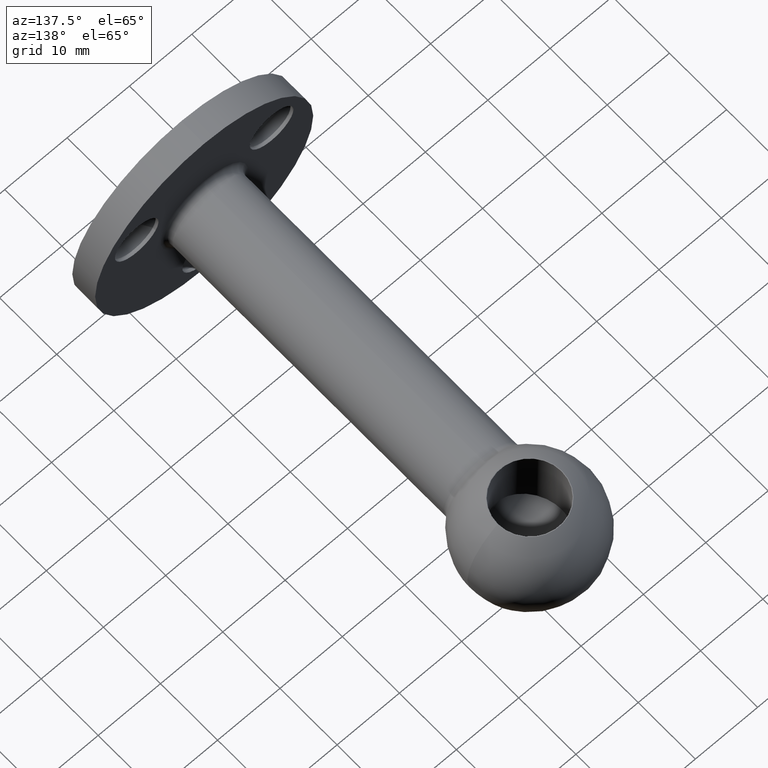
[diagram: clean part render]
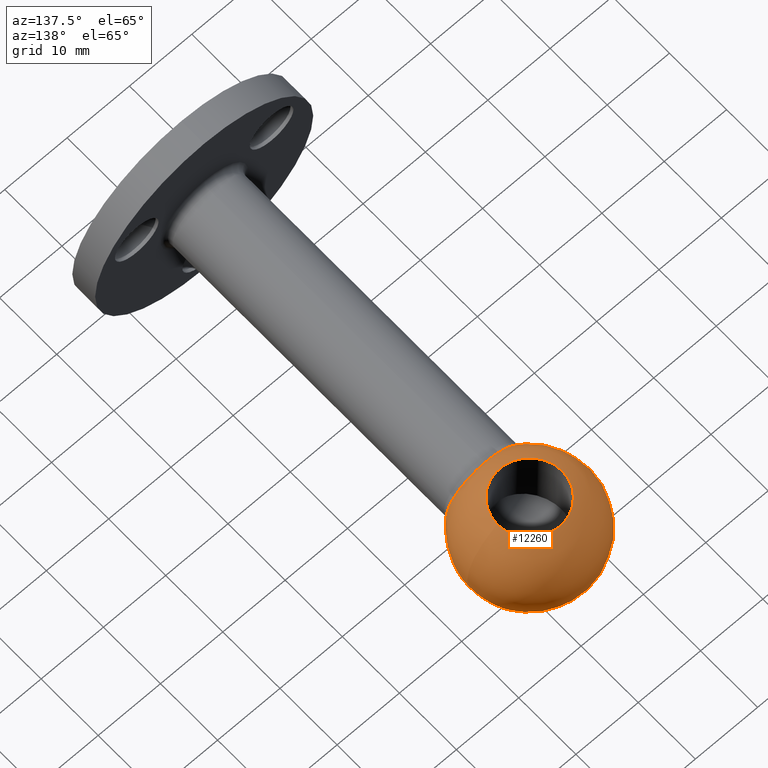
[diagram: same view with one face highlighted and labeled with its STEP entity id]
A machine part, auxiliary view. The second image highlights one B-rep face of the part: STEP entity #12260.
In plain terms, the highlighted spherical surface has radius 10 mm.
Its self-contained STEP definition (entity closure, byte-faithful):
#75 = DIRECTION ( 'NONE',  ( 0.000000000000000000, 0.000000000000000000, 1.000000000000000000 ) ) ;
#1076 = DIRECTION ( 'NONE',  ( 0.000000000000000000, 1.000000000000000000, 0.000000000000000000 ) ) ;
#1395 = DIRECTION ( 'NONE',  ( 0.7071067811865475727, 0.000000000000000000, 0.7071067811865475727 ) ) ;
#1403 = CARTESIAN_POINT ( 'NONE',  ( -5.185339102683029111, 61.00000000000000000, 8.550570647049607231 ) ) ;
#2035 = SPHERICAL_SURFACE ( 'NONE', #8638, 9.999999999999998224 ) ;
#2166 = CIRCLE ( 'NONE', #6131, 6.363636363636364202 ) ;
#2344 = FACE_BOUND ( 'NONE', #3482, .T. ) ;
#3056 = CIRCLE ( 'NONE', #8620, 5.162584444148893503 ) ;
#3427 = FACE_BOUND ( 'NONE', #3932, .T. ) ;
#3482 = EDGE_LOOP ( 'NONE', ( #6488 ) ) ;
#3653 = ORIENTED_EDGE ( 'NONE', *, *, #8867, .T. ) ;
#3706 = EDGE_CURVE ( 'NONE', #6863, #6863, #4839, .T. ) ;
#3932 = EDGE_LOOP ( 'NONE', ( #3653 ) ) ;
#4121 = EDGE_LOOP ( 'NONE', ( #11903 ) ) ;
#4839 = CIRCLE ( 'NONE', #8149, 5.185339102683029111 ) ;
#5103 = CARTESIAN_POINT ( 'NONE',  ( 0.000000000000000000, 61.00000000000000000, 8.550570647049607231 ) ) ;
#5335 = CARTESIAN_POINT ( 'NONE',  ( 6.055894725679756618, 61.00000000000000000, -6.055894725679756618 ) ) ;
#5954 = VERTEX_POINT ( 'NONE', #7152 ) ;
#6131 = AXIS2_PLACEMENT_3D ( 'NONE', #11549, #1076, #7755 ) ;
#6488 = ORIENTED_EDGE ( 'NONE', *, *, #3706, .T. ) ;
#6805 = DIRECTION ( 'NONE',  ( 1.000000000000000000, 0.000000000000000000, 0.000000000000000000 ) ) ;
#6863 = VERTEX_POINT ( 'NONE', #1403 ) ;
#6898 = CARTESIAN_POINT ( 'NONE',  ( 0.000000000000000000, 61.00000000000000000, 0.000000000000000000 ) ) ;
#7152 = CARTESIAN_POINT ( 'NONE',  ( 9.706393194585622552, 61.00000000000000000, -2.405396256773891128 ) ) ;
#7755 = DIRECTION ( 'NONE',  ( 0.000000000000000000, 0.000000000000000000, 1.000000000000000000 ) ) ;
#8149 = AXIS2_PLACEMENT_3D ( 'NONE', #5103, #9918, #9755 ) ;
#8620 = AXIS2_PLACEMENT_3D ( 'NONE', #5335, #12002, #1395 ) ;
#8638 = AXIS2_PLACEMENT_3D ( 'NONE', #6898, #75, #6805 ) ;
#8867 = EDGE_CURVE ( 'NONE', #5954, #5954, #3056, .T. ) ;
#9067 = CARTESIAN_POINT ( 'NONE',  ( 0.000000000000000000, 53.28610784160130009, 6.363636363636364202 ) ) ;
#9584 = EDGE_CURVE ( 'NONE', #10443, #10443, #2166, .T. ) ;
#9755 = DIRECTION ( 'NONE',  ( -1.000000000000000000, 0.000000000000000000, 0.000000000000000000 ) ) ;
#9918 = DIRECTION ( 'NONE',  ( -0.000000000000000000, -0.000000000000000000, -1.000000000000000000 ) ) ;
#10443 = VERTEX_POINT ( 'NONE', #9067 ) ;
#11549 = CARTESIAN_POINT ( 'NONE',  ( 0.000000000000000000, 53.28610784160130009, 0.000000000000000000 ) ) ;
#11903 = ORIENTED_EDGE ( 'NONE', *, *, #9584, .T. ) ;
#12002 = DIRECTION ( 'NONE',  ( -0.7071067811865475727, 0.000000000000000000, 0.7071067811865475727 ) ) ;
#12260 = ADVANCED_FACE ( 'NONE', ( #3427, #2344, #12285 ), #2035, .T. ) ;
#12285 = FACE_OUTER_BOUND ( 'NONE', #4121, .T. ) ;